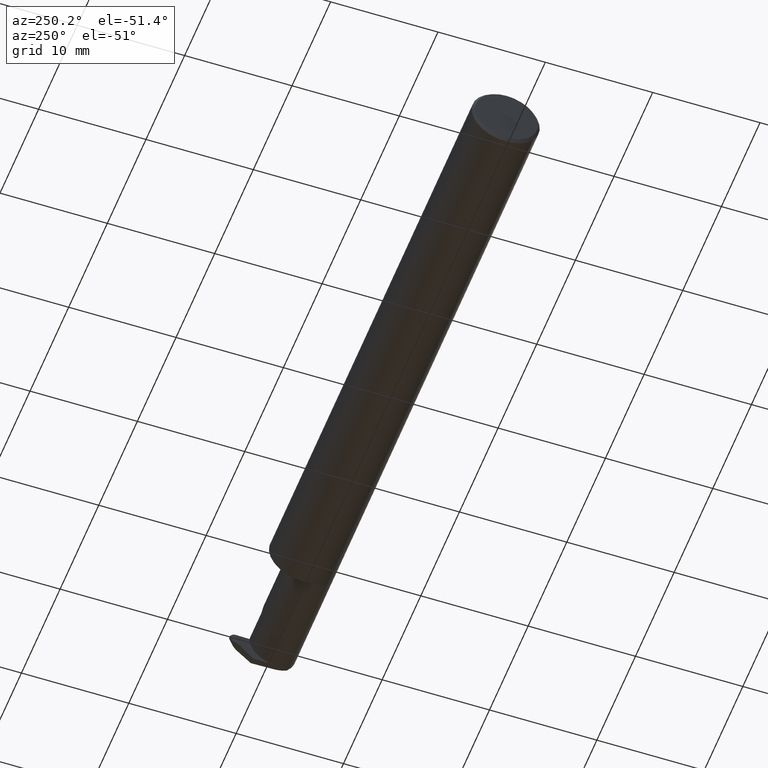
[diagram: clean part render]
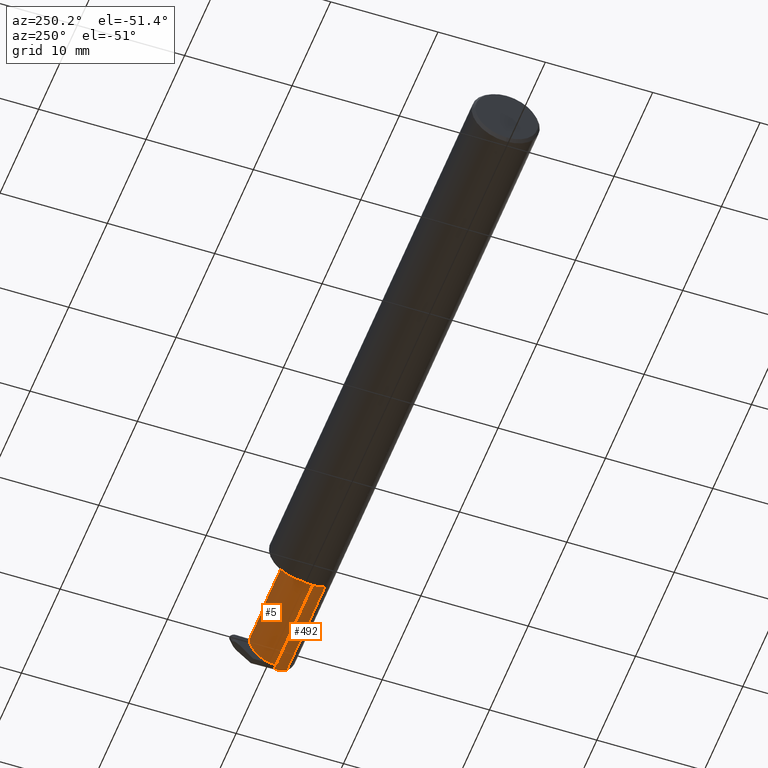
[diagram: same view with one multi-face feature highlighted, each face labeled with its STEP entity id]
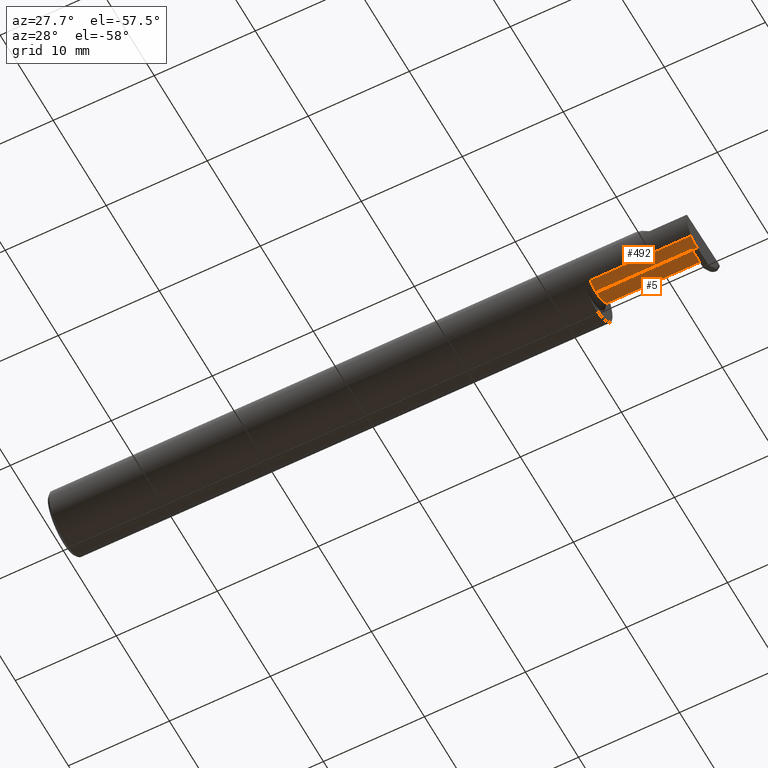
[diagram: same view with one multi-face feature highlighted, each face labeled with its STEP entity id]
A machine part, auxiliary view. The highlighted faces form ONE feature: a constant-radius fillet chain: 2 tangent blend faces with common blend radius 2.4892 mm. The faces share edges in the B-rep.
A second angle (auxiliary view) of the same feature is appended — it is thin or edge-on in the first view.
Their STEP definitions:
[1] entity #5 (Cylinder):
#4 = CARTESIAN_POINT ( 'NONE',  ( 2.100000000000000089, -0.04400000000000003908, -0.09800000000000005929 ) ) ;
#5 = ADVANCED_FACE ( 'NONE', ( #604 ), #229, .T. ) ;
#12 =( BOUNDED_CURVE ( )  B_SPLINE_CURVE ( 3, ( #101, #664, #113, #725 ),
 .UNSPECIFIED., .F., .F. ) 
 B_SPLINE_CURVE_WITH_KNOTS ( ( 4, 4 ),
 ( 3.176499238629679756, 4.677482395344803479 ),
 .UNSPECIFIED. ) 
 CURVE ( )  GEOMETRIC_REPRESENTATION_ITEM ( )  RATIONAL_B_SPLINE_CURVE ( ( 1.000000000000000000, 0.8209024677461134178, 0.8209024677461134178, 1.000000000000000000 ) ) 
 REPRESENTATION_ITEM ( '' )  );
#32 = LINE ( 'NONE', #174, #417 ) ;
#39 = CIRCLE ( 'NONE', #275, 0.09800000000000005929 ) ;
#46 = ORIENTED_EDGE ( 'NONE', *, *, #776, .F. ) ;
#62 = CARTESIAN_POINT ( 'NONE',  ( 2.292592929112562405, 0.05399999999999999245, 0.05740707088743673275 ) ) ;
#88 = VECTOR ( 'NONE', #472, 39.37007874015748143 ) ;
#97 = VERTEX_POINT ( 'NONE', #614 ) ;
#101 = CARTESIAN_POINT ( 'NONE',  ( 2.473987104431409012, -0.04400000000000004602, -0.09800000000000003153 ) ) ;
#102 = EDGE_LOOP ( 'NONE', ( #397, #187, #46, #324, #651, #266, #803, #692 ) ) ;
#105 = VERTEX_POINT ( 'NONE', #738 ) ;
#113 = CARTESIAN_POINT ( 'NONE',  ( 2.472556783207862097, 0.04997501107658562647, -0.06098225869090272144 ) ) ;
#137 = VERTEX_POINT ( 'NONE', #621 ) ;
#139 = CARTESIAN_POINT ( 'NONE',  ( 2.075000000000000178, -0.04400000000000004602, 0.09800000000000005929 ) ) ;
#148 = LINE ( 'NONE', #789, #88 ) ;
#152 = VERTEX_POINT ( 'NONE', #503 ) ;
#160 = VERTEX_POINT ( 'NONE', #772 ) ;
#174 = CARTESIAN_POINT ( 'NONE',  ( 2.075000000000000178, 0.05399999999999999245, 5.204748896376245769E-17 ) ) ;
#180 = DIRECTION ( 'NONE',  ( 0.000000000000000000, 0.000000000000000000, 1.000000000000000000 ) ) ;
#187 = ORIENTED_EDGE ( 'NONE', *, *, #218, .T. ) ;
#193 = EDGE_CURVE ( 'NONE', #410, #160, #12, .T. ) ;
#218 = EDGE_CURVE ( 'NONE', #410, #320, #470, .T. ) ;
#225 = DIRECTION ( 'NONE',  ( -1.000000000000000000, -0.000000000000000000, -0.000000000000000000 ) ) ;
#229 = CYLINDRICAL_SURFACE ( 'NONE', #700, 0.09800000000000005929 ) ;
#263 = LINE ( 'NONE', #139, #383 ) ;
#266 = ORIENTED_EDGE ( 'NONE', *, *, #778, .T. ) ;
#267 = CARTESIAN_POINT ( 'NONE',  ( 2.075000000000000178, -0.04400000000000003908, -0.09800000000000005929 ) ) ;
#272 = DIRECTION ( 'NONE',  ( -1.000000000000000000, -0.000000000000000000, -0.000000000000000000 ) ) ;
#275 = AXIS2_PLACEMENT_3D ( 'NONE', #735, #622, #801 ) ;
#294 = EDGE_CURVE ( 'NONE', #152, #137, #498, .T. ) ;
#304 = CARTESIAN_POINT ( 'NONE',  ( 2.464200446367434516, 0.05399999999999999245, 0.000000000000000000 ) ) ;
#320 = VERTEX_POINT ( 'NONE', #4 ) ;
#324 = ORIENTED_EDGE ( 'NONE', *, *, #753, .F. ) ;
#326 = B_SPLINE_CURVE_WITH_KNOTS ( 'NONE', 3,
 ( #389, #454, #809, #304 ),
 .UNSPECIFIED., .F., .F.,
 ( 4, 4 ),
 ( 0.000000000000000000, 1.000000000000000000 ),
 .UNSPECIFIED. ) ;
#357 = CARTESIAN_POINT ( 'NONE',  ( 2.350000000000000089, 0.05399999999999999245, 5.204748896376245769E-17 ) ) ;
#373 = CARTESIAN_POINT ( 'NONE',  ( 2.251999999999998892, -0.04400000000000004602, 0.09800000000000005929 ) ) ;
#383 = VECTOR ( 'NONE', #642, 39.37007874015748143 ) ;
#389 = CARTESIAN_POINT ( 'NONE',  ( 2.463961723292897421, 0.05376127692546274484, -0.006836134426924765292 ) ) ;
#397 = ORIENTED_EDGE ( 'NONE', *, *, #193, .F. ) ;
#407 = DIRECTION ( 'NONE',  ( 1.000000000000000000, 0.000000000000000000, 0.000000000000000000 ) ) ;
#410 = VERTEX_POINT ( 'NONE', #574 ) ;
#417 = VECTOR ( 'NONE', #407, 39.37007874015748143 ) ;
#435 = EDGE_CURVE ( 'NONE', #780, #105, #326, .T. ) ;
#454 = CARTESIAN_POINT ( 'NONE',  ( 2.464041297651076157, 0.05384085128364182737, -0.004557422951283171368 ) ) ;
#469 = CARTESIAN_POINT ( 'NONE',  ( 2.463961723292897421, 0.05376127692546274484, -0.006836134426924765292 ) ) ;
#470 = LINE ( 'NONE', #267, #813 ) ;
#472 = DIRECTION ( 'NONE',  ( -1.000000000000000000, -0.000000000000000000, -0.000000000000000000 ) ) ;
#496 = CARTESIAN_POINT ( 'NONE',  ( 2.075000000000000178, -0.04400000000000004602, 0.000000000000000000 ) ) ;
#498 =( BOUNDED_CURVE ( )  B_SPLINE_CURVE ( 3, ( #373, #506, #62, #357 ),
 .UNSPECIFIED., .F., .F. ) 
 B_SPLINE_CURVE_WITH_KNOTS ( ( 4, 4 ),
 ( 0.000000000000000000, 1.570796326794896336 ),
 .UNSPECIFIED. ) 
 CURVE ( )  GEOMETRIC_REPRESENTATION_ITEM ( )  RATIONAL_B_SPLINE_CURVE ( ( 1.000000000000000000, 0.8047378541243650485, 0.8047378541243650485, 1.000000000000000000 ) ) 
 REPRESENTATION_ITEM ( '' )  );
#503 = CARTESIAN_POINT ( 'NONE',  ( 2.251999999999998892, -0.04400000000000004602, 0.09800000000000005929 ) ) ;
#506 = CARTESIAN_POINT ( 'NONE',  ( 2.251999999999999336, 0.01340707088743666418, 0.09800000000000003153 ) ) ;
#574 = CARTESIAN_POINT ( 'NONE',  ( 2.473987104431409012, -0.04400000000000004602, -0.09800000000000003153 ) ) ;
#604 = FACE_OUTER_BOUND ( 'NONE', #102, .T. ) ;
#614 = CARTESIAN_POINT ( 'NONE',  ( 2.100000000000000089, -0.04400000000000004602, 0.09800000000000005929 ) ) ;
#621 = CARTESIAN_POINT ( 'NONE',  ( 2.350000000000000089, 0.05399999999999999245, 5.204748896376245769E-17 ) ) ;
#622 = DIRECTION ( 'NONE',  ( -1.000000000000000000, -0.000000000000000000, -0.000000000000000000 ) ) ;
#642 = DIRECTION ( 'NONE',  ( -1.000000000000000000, -0.000000000000000000, -0.000000000000000000 ) ) ;
#651 = ORIENTED_EDGE ( 'NONE', *, *, #294, .T. ) ;
#664 = CARTESIAN_POINT ( 'NONE',  ( 2.473919830754201410, 0.01027834358092150936, -0.09800000000000010092 ) ) ;
#670 = EDGE_CURVE ( 'NONE', #160, #780, #148, .T. ) ;
#692 = ORIENTED_EDGE ( 'NONE', *, *, #670, .F. ) ;
#700 = AXIS2_PLACEMENT_3D ( 'NONE', #496, #225, #180 ) ;
#725 = CARTESIAN_POINT ( 'NONE',  ( 2.470630317148074795, 0.05376127692546277259, -0.006836134426924198038 ) ) ;
#735 = CARTESIAN_POINT ( 'NONE',  ( 2.100000000000000089, -0.04400000000000004602, 0.000000000000000000 ) ) ;
#738 = CARTESIAN_POINT ( 'NONE',  ( 2.464200446367434516, 0.05399999999999999245, 0.000000000000000000 ) ) ;
#753 = EDGE_CURVE ( 'NONE', #152, #97, #263, .T. ) ;
#772 = CARTESIAN_POINT ( 'NONE',  ( 2.470630317148074795, 0.05376127692546277259, -0.006836134426924198038 ) ) ;
#776 = EDGE_CURVE ( 'NONE', #97, #320, #39, .T. ) ;
#778 = EDGE_CURVE ( 'NONE', #137, #105, #32, .T. ) ;
#780 = VERTEX_POINT ( 'NONE', #469 ) ;
#789 = CARTESIAN_POINT ( 'NONE',  ( 2.075000000000000178, 0.05376127692546276565, -0.006836134426924771364 ) ) ;
#801 = DIRECTION ( 'NONE',  ( 0.000000000000000000, 0.000000000000000000, 1.000000000000000000 ) ) ;
#803 = ORIENTED_EDGE ( 'NONE', *, *, #435, .F. ) ;
#809 = CARTESIAN_POINT ( 'NONE',  ( 2.464120872009255336, 0.05392042564182090991, -0.002278711475641585684 ) ) ;
#813 = VECTOR ( 'NONE', #272, 39.37007874015748143 ) ;
[2] entity #492 (Cylinder):
#4 = CARTESIAN_POINT ( 'NONE',  ( 2.100000000000000089, -0.04400000000000003908, -0.09800000000000005929 ) ) ;
#34 = CARTESIAN_POINT ( 'NONE',  ( 2.493664221452986052, -0.06028551311893198816, -0.09800000000000005929 ) ) ;
#43 = DIRECTION ( 'NONE',  ( -1.000000000000000000, -0.000000000000000000, -0.000000000000000000 ) ) ;
#66 = VECTOR ( 'NONE', #444, 39.37007874015748143 ) ;
#110 = CARTESIAN_POINT ( 'NONE',  ( 2.493948486141865484, -0.04400000000000004602, -0.09800000000000001765 ) ) ;
#116 = EDGE_CURVE ( 'NONE', #270, #708, #360, .T. ) ;
#150 = CARTESIAN_POINT ( 'NONE',  ( 2.493546555653489705, -0.09042045454545437344, -0.08630840862739515285 ) ) ;
#157 = EDGE_CURVE ( 'NONE', #270, #486, #795, .T. ) ;
#167 = AXIS2_PLACEMENT_3D ( 'NONE', #576, #242, #510 ) ;
#213 = ORIENTED_EDGE ( 'NONE', *, *, #116, .T. ) ;
#218 = EDGE_CURVE ( 'NONE', #410, #320, #470, .T. ) ;
#242 = DIRECTION ( 'NONE',  ( -1.000000000000000000, -0.000000000000000000, -0.000000000000000000 ) ) ;
#248 = CIRCLE ( 'NONE', #167, 0.09800000000000005929 ) ;
#267 = CARTESIAN_POINT ( 'NONE',  ( 2.075000000000000178, -0.04400000000000003908, -0.09800000000000005929 ) ) ;
#270 = VERTEX_POINT ( 'NONE', #481 ) ;
#272 = DIRECTION ( 'NONE',  ( -1.000000000000000000, -0.000000000000000000, -0.000000000000000000 ) ) ;
#296 = FACE_OUTER_BOUND ( 'NONE', #737, .T. ) ;
#315 = VECTOR ( 'NONE', #43, 39.37007874015748143 ) ;
#320 = VERTEX_POINT ( 'NONE', #4 ) ;
#321 = CARTESIAN_POINT ( 'NONE',  ( 2.672413070268786939, -0.04400000000000004602, -0.09800000000000001765 ) ) ;
#334 = ORIENTED_EDGE ( 'NONE', *, *, #218, .F. ) ;
#360 = LINE ( 'NONE', #479, #315 ) ;
#385 = LINE ( 'NONE', #321, #66 ) ;
#410 = VERTEX_POINT ( 'NONE', #574 ) ;
#441 = ORIENTED_EDGE ( 'NONE', *, *, #582, .F. ) ;
#444 = DIRECTION ( 'NONE',  ( -1.000000000000000000, -0.000000000000000000, -0.000000000000000000 ) ) ;
#461 = ORIENTED_EDGE ( 'NONE', *, *, #157, .F. ) ;
#470 = LINE ( 'NONE', #267, #813 ) ;
#479 = CARTESIAN_POINT ( 'NONE',  ( 2.284734615000000080, -0.09042045454545437344, -0.08630840862739515285 ) ) ;
#481 = CARTESIAN_POINT ( 'NONE',  ( 2.493546555653489705, -0.09042045454545437344, -0.08630840862739515285 ) ) ;
#486 = VERTEX_POINT ( 'NONE', #805 ) ;
#492 = ADVANCED_FACE ( 'NONE', ( #296 ), #764, .T. ) ;
#510 = DIRECTION ( 'NONE',  ( 0.000000000000000000, 0.000000000000000000, 1.000000000000000000 ) ) ;
#552 = ORIENTED_EDGE ( 'NONE', *, *, #742, .F. ) ;
#574 = CARTESIAN_POINT ( 'NONE',  ( 2.473987104431409012, -0.04400000000000004602, -0.09800000000000003153 ) ) ;
#576 = CARTESIAN_POINT ( 'NONE',  ( 2.100000000000000089, -0.04400000000000004602, 0.000000000000000000 ) ) ;
#580 = CARTESIAN_POINT ( 'NONE',  ( 2.075000000000000178, -0.04400000000000004602, 0.000000000000000000 ) ) ;
#582 = EDGE_CURVE ( 'NONE', #320, #708, #248, .T. ) ;
#605 = AXIS2_PLACEMENT_3D ( 'NONE', #580, #639, #758 ) ;
#639 = DIRECTION ( 'NONE',  ( -1.000000000000000000, -0.000000000000000000, -0.000000000000000000 ) ) ;
#643 = CARTESIAN_POINT ( 'NONE',  ( 2.493527483980555903, -0.07607783494366274213, -0.09402249966297454575 ) ) ;
#708 = VERTEX_POINT ( 'NONE', #727 ) ;
#727 = CARTESIAN_POINT ( 'NONE',  ( 2.100000000000000089, -0.09042045454545434569, -0.08630840862739518060 ) ) ;
#737 = EDGE_LOOP ( 'NONE', ( #334, #552, #461, #213, #441 ) ) ;
#742 = EDGE_CURVE ( 'NONE', #486, #410, #385, .T. ) ;
#758 = DIRECTION ( 'NONE',  ( 0.000000000000000000, 0.000000000000000000, 1.000000000000000000 ) ) ;
#764 = CYLINDRICAL_SURFACE ( 'NONE', #605, 0.09800000000000005929 ) ;
#795 =( BOUNDED_CURVE ( )  B_SPLINE_CURVE ( 3, ( #150, #643, #34, #110 ),
 .UNSPECIFIED., .F., .F. ) 
 B_SPLINE_CURVE_WITH_KNOTS ( ( 4, 4 ),
 ( 6.253187659403638854, 6.746650124384929725 ),
 .UNSPECIFIED. ) 
 CURVE ( )  GEOMETRIC_REPRESENTATION_ITEM ( )  RATIONAL_B_SPLINE_CURVE ( ( 1.000000000000000000, 0.9798106333074687591, 0.9798106333074687591, 1.000000000000000000 ) ) 
 REPRESENTATION_ITEM ( '' )  );
#805 = CARTESIAN_POINT ( 'NONE',  ( 2.493948486141865484, -0.04400000000000004602, -0.09800000000000001765 ) ) ;
#813 = VECTOR ( 'NONE', #272, 39.37007874015748143 ) ;